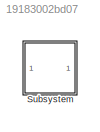
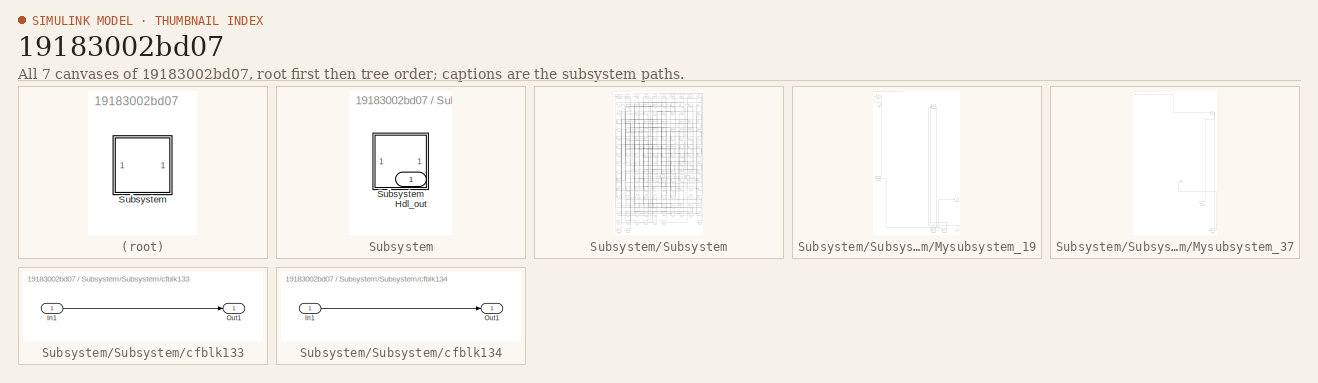
[diagram: thumbnail index - all 7 canvases of the model, root first then tree order]
MODEL slx_19183002bd07
KIND model
CONFIG AbsTol = auto
CONFIG EnableMultiTasking = off
CONFIG FixedStep = auto
CONFIG MaxStep = auto
CONFIG MinStep = auto
CONFIG RelTol = 1e-3
CONFIG SampleTimeConstraint = Unconstrained
CONFIG SolverName = VariableStepAuto
CONFIG StartTime = 0.0
CONFIG StopTime = 10.0
BLOCK [SubSystem] Subsystem
BLOCK [Outport] Subsystem/Hdl_out
  OutDataTypeStr = uint8
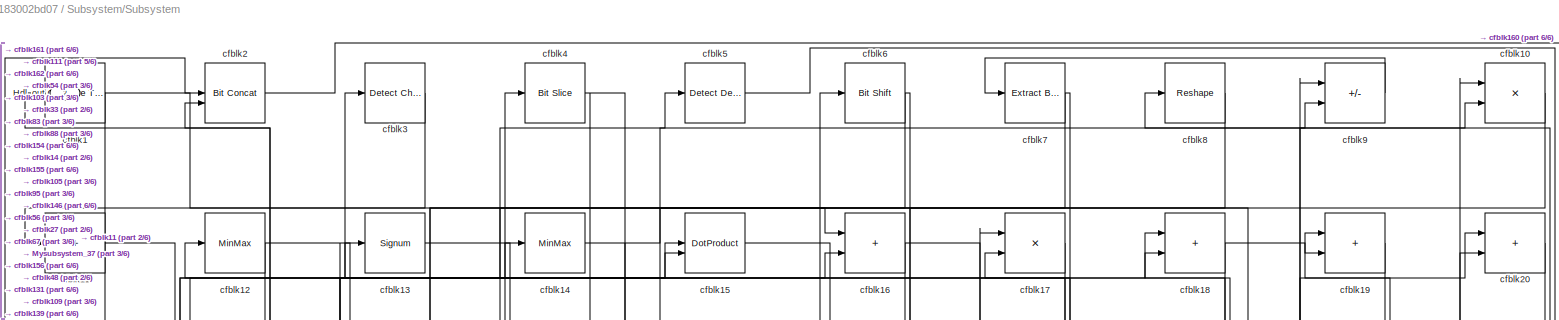
[diagram: Subsystem/Subsystem - part 1/6, full width, top band]
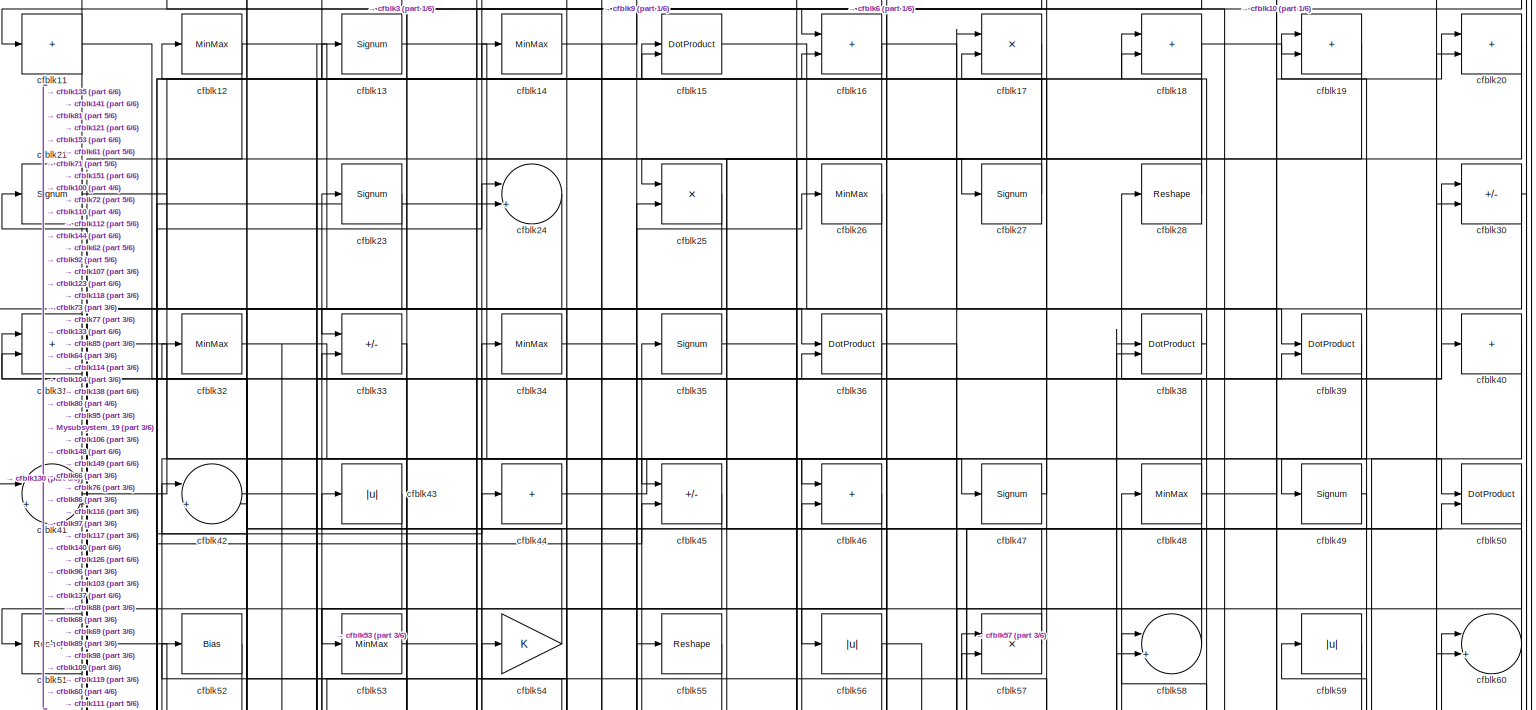
[diagram: Subsystem/Subsystem - part 2/6, full width, top band]
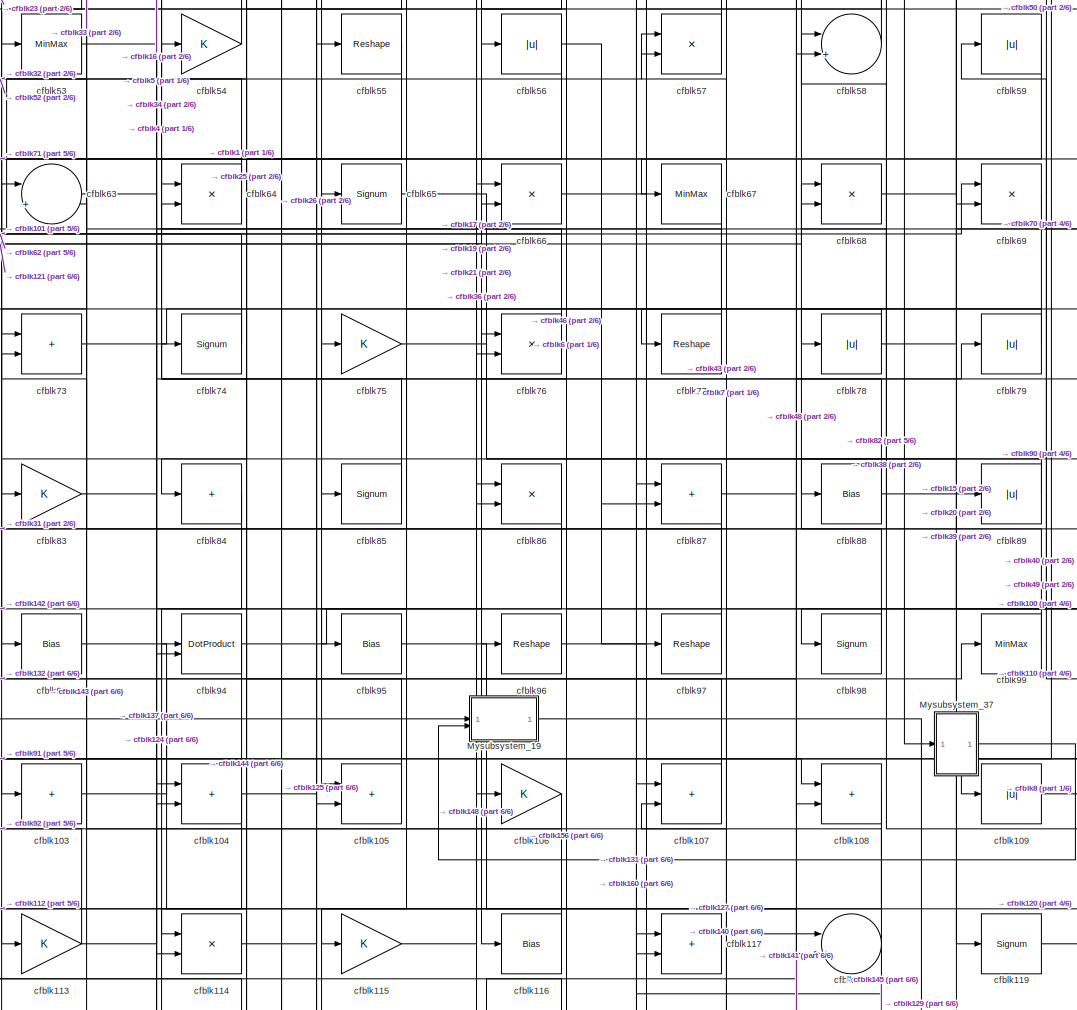
[diagram: Subsystem/Subsystem - part 3/6, central region]
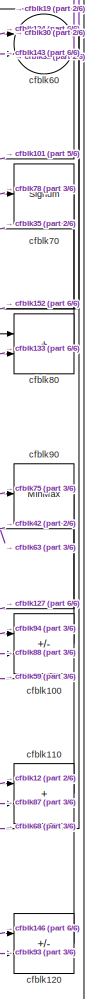
[diagram: Subsystem/Subsystem - part 4/6, middle right region]
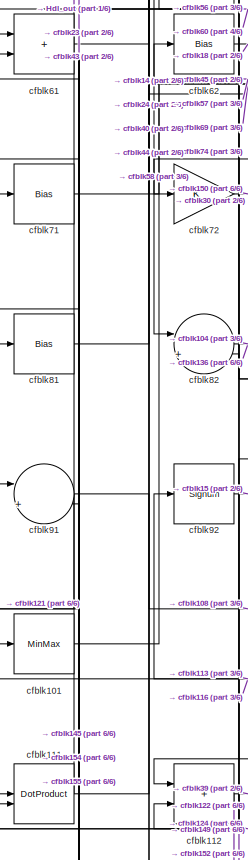
[diagram: Subsystem/Subsystem - part 5/6, middle left region]
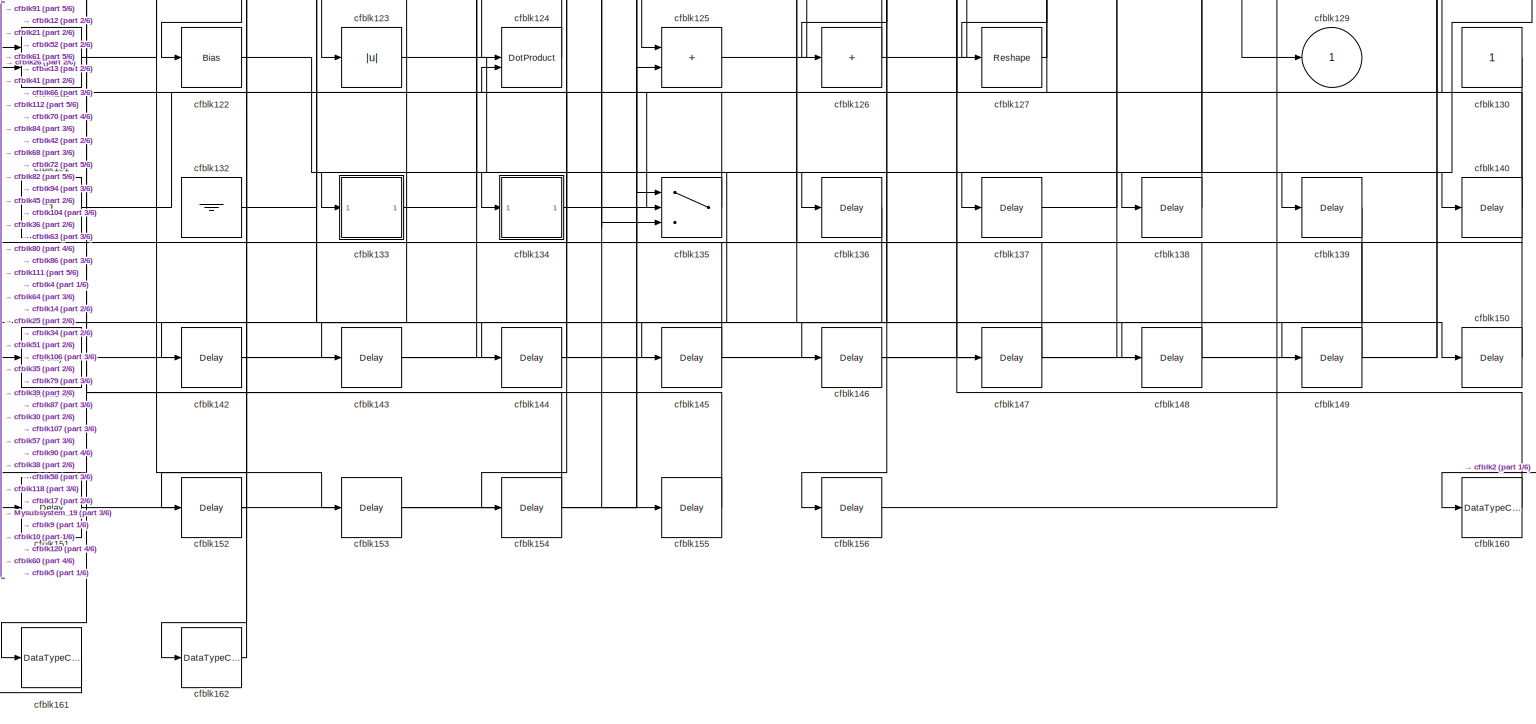
[diagram: Subsystem/Subsystem - part 6/6, full width, bottom band]
BLOCK [SubSystem] Subsystem/Subsystem
BLOCK [Outport] Subsystem/Subsystem/Hdl_out
  OutDataTypeStr = uint8
  Port = 2
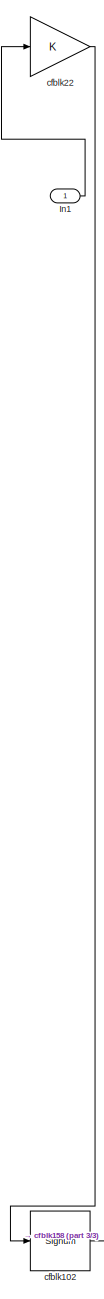
[diagram: Subsystem/Subsystem/Mysubsystem_19 - part 1/3, top left region]
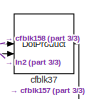
[diagram: Subsystem/Subsystem/Mysubsystem_19 - part 2/3, top right region]
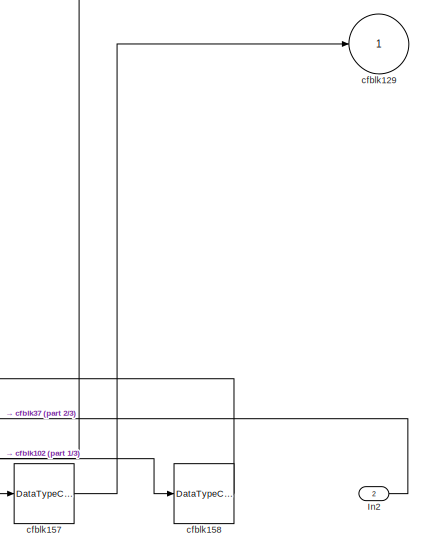
[diagram: Subsystem/Subsystem/Mysubsystem_19 - part 3/3, bottom right region]
BLOCK [SubSystem] Subsystem/Subsystem/Mysubsystem_19
  RTWFcnName = Mysubsystem_19
  RTWFcnNameOpts = User specified
  RTWFileNameOpts = Use function name
  RTWSystemCode = Reusable function
  TreatAsAtomicUnit = on
BLOCK [Inport] Subsystem/Subsystem/Mysubsystem_19/In1
BLOCK [Inport] Subsystem/Subsystem/Mysubsystem_19/In2
  Port = 2
BLOCK [Signum] Subsystem/Subsystem/Mysubsystem_19/cfblk102
BLOCK [Outport] Subsystem/Subsystem/Mysubsystem_19/cfblk129
  VectorParamsAs1DForOutWhenUnconnected = off
BLOCK [DataTypeConversion] Subsystem/Subsystem/Mysubsystem_19/cfblk157
  OutDataTypeStr = uint8
  RndMeth = Floor
  SaturateOnIntegerOverflow = off
BLOCK [DataTypeConversion] Subsystem/Subsystem/Mysubsystem_19/cfblk158
  OutDataTypeStr = uint8
  RndMeth = Floor
  SaturateOnIntegerOverflow = off
BLOCK [Gain] Subsystem/Subsystem/Mysubsystem_19/cfblk22
BLOCK [DotProduct] Subsystem/Subsystem/Mysubsystem_19/cfblk37
  OutDataTypeStr = Inherit: Inherit via internal rule
BLOCK [SubSystem] Subsystem/Subsystem/Mysubsystem_37
  RTWFcnName = Mysubsystem_37
  RTWFcnNameOpts = User specified
  RTWFileNameOpts = Use function name
  RTWSystemCode = Reusable function
  TreatAsAtomicUnit = on
BLOCK [Inport] Subsystem/Subsystem/Mysubsystem_37/In1
BLOCK [Outport] Subsystem/Subsystem/Mysubsystem_37/Out1
BLOCK [Display] Subsystem/Subsystem/Mysubsystem_37/cfblk128
  Decimation = 1
BLOCK [DataTypeConversion] Subsystem/Subsystem/Mysubsystem_37/cfblk159
  OutDataTypeStr = uint8
  RndMeth = Floor
  SaturateOnIntegerOverflow = off
BLOCK [Gain] Subsystem/Subsystem/Mysubsystem_37/cfblk29
BLOCK [Reference] Subsystem/Subsystem/cfblk1  REF=hdlsllib/Logic and Bit
Operations/Compare
To Zero
  SourceBlock = hdlsllib/Logic and Bit\nOperations/Compare\nTo Zero
  SourceType = Compare To Zero
BLOCK [Product] Subsystem/Subsystem/cfblk10
  Inputs = */
  OutDataTypeStr = uint8
  RndMeth = Zero
  SaturateOnIntegerOverflow = on
BLOCK [Sum] Subsystem/Subsystem/cfblk100
  IconShape = rectangular
  Inputs = +-
  OutDataTypeStr = uint8
BLOCK [MinMax] Subsystem/Subsystem/cfblk101
  OutDataTypeStr = uint8
BLOCK [Sum] Subsystem/Subsystem/cfblk103
  IconShape = rectangular
  Inputs = +
  OutDataTypeStr = uint8
BLOCK [Sum] Subsystem/Subsystem/cfblk104
  IconShape = rectangular
  OutDataTypeStr = uint8
BLOCK [Sum] Subsystem/Subsystem/cfblk105
  IconShape = rectangular
  OutDataTypeStr = uint8
BLOCK [Gain] Subsystem/Subsystem/cfblk106
  OutDataTypeStr = uint8
BLOCK [Sum] Subsystem/Subsystem/cfblk107
  IconShape = rectangular
  OutDataTypeStr = uint8
BLOCK [Sum] Subsystem/Subsystem/cfblk108
  IconShape = rectangular
  OutDataTypeStr = uint8
BLOCK [Abs] Subsystem/Subsystem/cfblk109
  OutDataTypeStr = uint8
  SaturateOnIntegerOverflow = off
BLOCK [Sum] Subsystem/Subsystem/cfblk11
  IconShape = rectangular
  Inputs = +
  OutDataTypeStr = uint8
BLOCK [Sum] Subsystem/Subsystem/cfblk110
  IconShape = rectangular
  OutDataTypeStr = uint8
BLOCK [DotProduct] Subsystem/Subsystem/cfblk111
  OutDataTypeStr = uint8
BLOCK [Sum] Subsystem/Subsystem/cfblk112
  IconShape = rectangular
  OutDataTypeStr = uint8
BLOCK [Gain] Subsystem/Subsystem/cfblk113
  OutDataTypeStr = uint8
BLOCK [Product] Subsystem/Subsystem/cfblk114
  Inputs = */
  OutDataTypeStr = uint8
  RndMeth = Zero
  SaturateOnIntegerOverflow = on
BLOCK [Gain] Subsystem/Subsystem/cfblk115
  OutDataTypeStr = uint8
BLOCK [Bias] Subsystem/Subsystem/cfblk116
  Bias = 0.0
  SaturateOnIntegerOverflow = off
BLOCK [Sum] Subsystem/Subsystem/cfblk117
  IconShape = rectangular
  OutDataTypeStr = uint8
BLOCK [Sum] Subsystem/Subsystem/cfblk118
  Inputs = |++
  OutDataTypeStr = uint8
BLOCK [Signum] Subsystem/Subsystem/cfblk119
BLOCK [MinMax] Subsystem/Subsystem/cfblk12
  OutDataTypeStr = uint8
BLOCK [Sum] Subsystem/Subsystem/cfblk120
  IconShape = rectangular
  Inputs = +-
  OutDataTypeStr = uint8
BLOCK [Product] Subsystem/Subsystem/cfblk121
  Inputs = */
  OutDataTypeStr = uint8
  RndMeth = Zero
  SaturateOnIntegerOverflow = on
BLOCK [Bias] Subsystem/Subsystem/cfblk122
  Bias = 0.0
  SaturateOnIntegerOverflow = off
BLOCK [Abs] Subsystem/Subsystem/cfblk123
  OutDataTypeStr = uint8
  SaturateOnIntegerOverflow = off
BLOCK [DotProduct] Subsystem/Subsystem/cfblk124
  OutDataTypeStr = uint8
BLOCK [Sum] Subsystem/Subsystem/cfblk125
  IconShape = rectangular
  OutDataTypeStr = uint8
BLOCK [Sum] Subsystem/Subsystem/cfblk126
  IconShape = rectangular
  Inputs = +
  OutDataTypeStr = uint8
BLOCK [Reshape] Subsystem/Subsystem/cfblk127
BLOCK [Outport] Subsystem/Subsystem/cfblk129
  OutDataTypeStr = uint8
  VectorParamsAs1DForOutWhenUnconnected = off
BLOCK [Signum] Subsystem/Subsystem/cfblk13
BLOCK [Constant] Subsystem/Subsystem/cfblk130
  OutDataTypeStr = uint8
  SampleTime = -1
BLOCK [Constant] Subsystem/Subsystem/cfblk131
  OutDataTypeStr = uint8
  SampleTime = -1
BLOCK [Ground] Subsystem/Subsystem/cfblk132
BLOCK [SubSystem] Subsystem/Subsystem/cfblk133
  LibrarySourceBlock = hdlsllib/Ports &\nSubsystems/Subsystem
BLOCK [Inport] Subsystem/Subsystem/cfblk133/In1
BLOCK [Outport] Subsystem/Subsystem/cfblk133/Out1
BLOCK [SubSystem] Subsystem/Subsystem/cfblk134
  LibrarySourceBlock = hdlsllib/Ports &\nSubsystems/Subsystem
BLOCK [Inport] Subsystem/Subsystem/cfblk134/In1
BLOCK [Outport] Subsystem/Subsystem/cfblk134/Out1
BLOCK [Switch] Subsystem/Subsystem/cfblk135
  InputSameDT = off
  OutDataTypeStr = uint8
  SaturateOnIntegerOverflow = off
BLOCK [Delay] Subsystem/Subsystem/cfblk136
  InputPortMap = u0
  SampleTime = 1
BLOCK [Delay] Subsystem/Subsystem/cfblk137
  InputPortMap = u0
  SampleTime = 1
BLOCK [Delay] Subsystem/Subsystem/cfblk138
  InputPortMap = u0
  SampleTime = 1
BLOCK [Delay] Subsystem/Subsystem/cfblk139
  InputPortMap = u0
  SampleTime = 1
BLOCK [MinMax] Subsystem/Subsystem/cfblk14
  OutDataTypeStr = uint8
BLOCK [Delay] Subsystem/Subsystem/cfblk140
  InputPortMap = u0
  SampleTime = 1
BLOCK [Delay] Subsystem/Subsystem/cfblk141
  InputPortMap = u0
  SampleTime = 1
BLOCK [Delay] Subsystem/Subsystem/cfblk142
  InputPortMap = u0
  SampleTime = 1
BLOCK [Delay] Subsystem/Subsystem/cfblk143
  InputPortMap = u0
  SampleTime = 1
BLOCK [Delay] Subsystem/Subsystem/cfblk144
  InputPortMap = u0
  SampleTime = 1
BLOCK [Delay] Subsystem/Subsystem/cfblk145
  InputPortMap = u0
  SampleTime = 1
BLOCK [Delay] Subsystem/Subsystem/cfblk146
  InputPortMap = u0
  SampleTime = 1
BLOCK [Delay] Subsystem/Subsystem/cfblk147
  InputPortMap = u0
  SampleTime = 1
BLOCK [Delay] Subsystem/Subsystem/cfblk148
  InputPortMap = u0
  SampleTime = 1
BLOCK [Delay] Subsystem/Subsystem/cfblk149
  InputPortMap = u0
  SampleTime = 1
BLOCK [DotProduct] Subsystem/Subsystem/cfblk15
  OutDataTypeStr = uint8
BLOCK [Delay] Subsystem/Subsystem/cfblk150
  InputPortMap = u0
  SampleTime = 1
BLOCK [Delay] Subsystem/Subsystem/cfblk151
  InputPortMap = u0
  SampleTime = 1
BLOCK [Delay] Subsystem/Subsystem/cfblk152
  InputPortMap = u0
  SampleTime = 1
BLOCK [Delay] Subsystem/Subsystem/cfblk153
  InputPortMap = u0
  SampleTime = 1
BLOCK [Delay] Subsystem/Subsystem/cfblk154
  InputPortMap = u0
  SampleTime = 1
BLOCK [Delay] Subsystem/Subsystem/cfblk155
  InputPortMap = u0
  SampleTime = 1
BLOCK [Delay] Subsystem/Subsystem/cfblk156
  InputPortMap = u0
  SampleTime = 1
BLOCK [Sum] Subsystem/Subsystem/cfblk16
  IconShape = rectangular
  OutDataTypeStr = uint8
BLOCK [DataTypeConversion] Subsystem/Subsystem/cfblk160
  OutDataTypeStr = uint8
  RndMeth = Floor
  SaturateOnIntegerOverflow = off
BLOCK [DataTypeConversion] Subsystem/Subsystem/cfblk161
  OutDataTypeStr = uint8
  RndMeth = Floor
  SaturateOnIntegerOverflow = off
BLOCK [DataTypeConversion] Subsystem/Subsystem/cfblk162
  OutDataTypeStr = uint8
  RndMeth = Floor
  SaturateOnIntegerOverflow = off
BLOCK [Product] Subsystem/Subsystem/cfblk17
  Inputs = */
  OutDataTypeStr = uint8
  RndMeth = Zero
  SaturateOnIntegerOverflow = on
BLOCK [Sum] Subsystem/Subsystem/cfblk18
  IconShape = rectangular
  OutDataTypeStr = uint8
BLOCK [Sum] Subsystem/Subsystem/cfblk19
  IconShape = rectangular
  OutDataTypeStr = uint8
BLOCK [Reference] Subsystem/Subsystem/cfblk2  REF=hdlsllib/Logic and Bit
Operations/Bit Concat
  SourceBlock = hdlsllib/Logic and Bit\nOperations/Bit Concat
  SourceType = Bit Concat
BLOCK [Sum] Subsystem/Subsystem/cfblk20
  IconShape = rectangular
  OutDataTypeStr = uint8
BLOCK [Signum] Subsystem/Subsystem/cfblk21
BLOCK [Signum] Subsystem/Subsystem/cfblk23
BLOCK [Sum] Subsystem/Subsystem/cfblk24
  Inputs = |++
  OutDataTypeStr = uint8
BLOCK [Product] Subsystem/Subsystem/cfblk25
  Inputs = */
  OutDataTypeStr = uint8
  RndMeth = Zero
  SaturateOnIntegerOverflow = on
BLOCK [MinMax] Subsystem/Subsystem/cfblk26
  OutDataTypeStr = uint8
BLOCK [Signum] Subsystem/Subsystem/cfblk27
BLOCK [Reshape] Subsystem/Subsystem/cfblk28
BLOCK [Reference] Subsystem/Subsystem/cfblk3  REF=simulink/Logic and Bit
Operations/Detect
Change
  LibrarySourceBlock = hdlsllib/Logic and Bit\nOperations/Detect\nChange
  SourceBlock = simulink/Logic and Bit\nOperations/Detect\nChange
  SourceType = Detect Change
BLOCK [Sum] Subsystem/Subsystem/cfblk30
  IconShape = rectangular
  Inputs = +-
  OutDataTypeStr = uint8
BLOCK [Sum] Subsystem/Subsystem/cfblk31
  IconShape = rectangular
  OutDataTypeStr = uint8
BLOCK [MinMax] Subsystem/Subsystem/cfblk32
  OutDataTypeStr = uint8
BLOCK [Sum] Subsystem/Subsystem/cfblk33
  IconShape = rectangular
  Inputs = +-
  OutDataTypeStr = uint8
BLOCK [MinMax] Subsystem/Subsystem/cfblk34
  OutDataTypeStr = uint8
BLOCK [Signum] Subsystem/Subsystem/cfblk35
BLOCK [DotProduct] Subsystem/Subsystem/cfblk36
  OutDataTypeStr = uint8
BLOCK [DotProduct] Subsystem/Subsystem/cfblk38
  OutDataTypeStr = uint8
BLOCK [DotProduct] Subsystem/Subsystem/cfblk39
  OutDataTypeStr = uint8
BLOCK [Reference] Subsystem/Subsystem/cfblk4  REF=hdlsllib/Logic and Bit
Operations/Bit Slice
  SourceBlock = hdlsllib/Logic and Bit\nOperations/Bit Slice
  SourceType = Bit Slice
BLOCK [Sum] Subsystem/Subsystem/cfblk40
  IconShape = rectangular
  Inputs = +
  OutDataTypeStr = uint8
BLOCK [Sum] Subsystem/Subsystem/cfblk41
  Inputs = |++
  OutDataTypeStr = uint8
BLOCK [Sum] Subsystem/Subsystem/cfblk42
  Inputs = |++
  OutDataTypeStr = uint8
BLOCK [Abs] Subsystem/Subsystem/cfblk43
  OutDataTypeStr = uint8
  SaturateOnIntegerOverflow = off
BLOCK [Sum] Subsystem/Subsystem/cfblk44
  IconShape = rectangular
  Inputs = +
  OutDataTypeStr = uint8
BLOCK [Sum] Subsystem/Subsystem/cfblk45
  IconShape = rectangular
  Inputs = +-
  OutDataTypeStr = uint8
BLOCK [Sum] Subsystem/Subsystem/cfblk46
  IconShape = rectangular
  OutDataTypeStr = uint8
BLOCK [Signum] Subsystem/Subsystem/cfblk47
BLOCK [MinMax] Subsystem/Subsystem/cfblk48
  OutDataTypeStr = uint8
BLOCK [Signum] Subsystem/Subsystem/cfblk49
BLOCK [Reference] Subsystem/Subsystem/cfblk5  REF=simulink/Logic and Bit
Operations/Detect
Decrease
  LibrarySourceBlock = hdlsllib/Logic and Bit\nOperations/Detect\nDecrease
  SourceBlock = simulink/Logic and Bit\nOperations/Detect\nDecrease
  SourceType = Detect Decrease
BLOCK [DotProduct] Subsystem/Subsystem/cfblk50
  OutDataTypeStr = uint8
BLOCK [Reshape] Subsystem/Subsystem/cfblk51
BLOCK [Bias] Subsystem/Subsystem/cfblk52
  Bias = 0.0
  SaturateOnIntegerOverflow = off
BLOCK [MinMax] Subsystem/Subsystem/cfblk53
  OutDataTypeStr = uint8
BLOCK [Gain] Subsystem/Subsystem/cfblk54
  OutDataTypeStr = uint8
BLOCK [Reshape] Subsystem/Subsystem/cfblk55
BLOCK [Abs] Subsystem/Subsystem/cfblk56
  OutDataTypeStr = uint8
  SaturateOnIntegerOverflow = off
BLOCK [Product] Subsystem/Subsystem/cfblk57
  Inputs = */
  OutDataTypeStr = uint8
  RndMeth = Zero
  SaturateOnIntegerOverflow = on
BLOCK [Sum] Subsystem/Subsystem/cfblk58
  Inputs = |++
  OutDataTypeStr = uint8
BLOCK [Abs] Subsystem/Subsystem/cfblk59
  OutDataTypeStr = uint8
  SaturateOnIntegerOverflow = off
BLOCK [Reference] Subsystem/Subsystem/cfblk6  REF=hdlsllib/Logic and Bit
Operations/Bit Shift
  SourceBlock = hdlsllib/Logic and Bit\nOperations/Bit Shift
  SourceType = Bit Shift
BLOCK [Sum] Subsystem/Subsystem/cfblk60
  Inputs = |++
  OutDataTypeStr = uint8
BLOCK [Sum] Subsystem/Subsystem/cfblk61
  IconShape = rectangular
  OutDataTypeStr = uint8
BLOCK [Bias] Subsystem/Subsystem/cfblk62
  Bias = 0.0
  SaturateOnIntegerOverflow = off
BLOCK [Sum] Subsystem/Subsystem/cfblk63
  Inputs = |++
  OutDataTypeStr = uint8
BLOCK [Product] Subsystem/Subsystem/cfblk64
  Inputs = */
  OutDataTypeStr = uint8
  RndMeth = Zero
  SaturateOnIntegerOverflow = on
BLOCK [Signum] Subsystem/Subsystem/cfblk65
BLOCK [Product] Subsystem/Subsystem/cfblk66
  Inputs = */
  OutDataTypeStr = uint8
  RndMeth = Zero
  SaturateOnIntegerOverflow = on
BLOCK [MinMax] Subsystem/Subsystem/cfblk67
  OutDataTypeStr = uint8
BLOCK [Product] Subsystem/Subsystem/cfblk68
  Inputs = */
  OutDataTypeStr = uint8
  RndMeth = Zero
  SaturateOnIntegerOverflow = on
BLOCK [Product] Subsystem/Subsystem/cfblk69
  Inputs = */
  OutDataTypeStr = uint8
  RndMeth = Zero
  SaturateOnIntegerOverflow = on
BLOCK [Reference] Subsystem/Subsystem/cfblk7  REF=simulink/Logic and Bit
Operations/Extract Bits
  LibrarySourceBlock = hdlsllib/Logic and Bit\nOperations/Extract Bits
  SourceBlock = simulink/Logic and Bit\nOperations/Extract Bits
  SourceType = Extract Bits
BLOCK [Signum] Subsystem/Subsystem/cfblk70
BLOCK [Bias] Subsystem/Subsystem/cfblk71
  Bias = 0.0
  SaturateOnIntegerOverflow = off
BLOCK [Gain] Subsystem/Subsystem/cfblk72
  OutDataTypeStr = uint8
BLOCK [Sum] Subsystem/Subsystem/cfblk73
  IconShape = rectangular
  OutDataTypeStr = uint8
BLOCK [Signum] Subsystem/Subsystem/cfblk74
BLOCK [Gain] Subsystem/Subsystem/cfblk75
  OutDataTypeStr = uint8
BLOCK [Product] Subsystem/Subsystem/cfblk76
  Inputs = */
  OutDataTypeStr = uint8
  RndMeth = Zero
  SaturateOnIntegerOverflow = on
BLOCK [Reshape] Subsystem/Subsystem/cfblk77
BLOCK [Abs] Subsystem/Subsystem/cfblk78
  OutDataTypeStr = uint8
  SaturateOnIntegerOverflow = off
BLOCK [Abs] Subsystem/Subsystem/cfblk79
  OutDataTypeStr = uint8
  SaturateOnIntegerOverflow = off
BLOCK [Reshape] Subsystem/Subsystem/cfblk8
BLOCK [Sum] Subsystem/Subsystem/cfblk80
  IconShape = rectangular
  OutDataTypeStr = uint8
BLOCK [Bias] Subsystem/Subsystem/cfblk81
  Bias = 0.0
  SaturateOnIntegerOverflow = off
BLOCK [Sum] Subsystem/Subsystem/cfblk82
  Inputs = |++
  OutDataTypeStr = uint8
BLOCK [Gain] Subsystem/Subsystem/cfblk83
  OutDataTypeStr = uint8
BLOCK [Sum] Subsystem/Subsystem/cfblk84
  IconShape = rectangular
  Inputs = +
  OutDataTypeStr = uint8
BLOCK [Signum] Subsystem/Subsystem/cfblk85
BLOCK [Product] Subsystem/Subsystem/cfblk86
  Inputs = */
  OutDataTypeStr = uint8
  RndMeth = Zero
  SaturateOnIntegerOverflow = on
BLOCK [Sum] Subsystem/Subsystem/cfblk87
  IconShape = rectangular
  OutDataTypeStr = uint8
BLOCK [Bias] Subsystem/Subsystem/cfblk88
  Bias = 0.0
  SaturateOnIntegerOverflow = off
BLOCK [Abs] Subsystem/Subsystem/cfblk89
  OutDataTypeStr = uint8
  SaturateOnIntegerOverflow = off
BLOCK [Sum] Subsystem/Subsystem/cfblk9
  IconShape = rectangular
  Inputs = +-
  OutDataTypeStr = uint8
BLOCK [MinMax] Subsystem/Subsystem/cfblk90
  OutDataTypeStr = uint8
BLOCK [Sum] Subsystem/Subsystem/cfblk91
  Inputs = |++
  OutDataTypeStr = uint8
BLOCK [Signum] Subsystem/Subsystem/cfblk92
BLOCK [Bias] Subsystem/Subsystem/cfblk93
  Bias = 0.0
  SaturateOnIntegerOverflow = off
BLOCK [DotProduct] Subsystem/Subsystem/cfblk94
  OutDataTypeStr = uint8
BLOCK [Bias] Subsystem/Subsystem/cfblk95
  Bias = 0.0
  SaturateOnIntegerOverflow = off
BLOCK [Reshape] Subsystem/Subsystem/cfblk96
BLOCK [Reshape] Subsystem/Subsystem/cfblk97
BLOCK [Signum] Subsystem/Subsystem/cfblk98
BLOCK [MinMax] Subsystem/Subsystem/cfblk99
  OutDataTypeStr = uint8
LINE Subsystem/Subsystem/Mysubsystem_19/In1:1 -> Subsystem/Subsystem/Mysubsystem_19/cfblk22:1
LINE Subsystem/Subsystem/Mysubsystem_19/In2:1 -> Subsystem/Subsystem/Mysubsystem_19/cfblk37:2
LINE Subsystem/Subsystem/Mysubsystem_19/cfblk102:1 -> Subsystem/Subsystem/Mysubsystem_19/cfblk158:1
LINE Subsystem/Subsystem/Mysubsystem_19/cfblk157:1 -> Subsystem/Subsystem/Mysubsystem_19/cfblk129:1
LINE Subsystem/Subsystem/Mysubsystem_19/cfblk158:1 -> Subsystem/Subsystem/Mysubsystem_19/cfblk37:1
LINE Subsystem/Subsystem/Mysubsystem_19/cfblk22:1 -> Subsystem/Subsystem/Mysubsystem_19/cfblk102:1
LINE Subsystem/Subsystem/Mysubsystem_19/cfblk37:1 -> Subsystem/Subsystem/Mysubsystem_19/cfblk157:1
LINE Subsystem/Subsystem/Mysubsystem_19:1 -> Subsystem/Subsystem/cfblk129:1
LINE Subsystem/Subsystem/Mysubsystem_37/In1:1 -> Subsystem/Subsystem/Mysubsystem_37/cfblk29:1
LINE Subsystem/Subsystem/Mysubsystem_37/cfblk159:1 -> Subsystem/Subsystem/Mysubsystem_37/Out1:1
NET Subsystem/Subsystem/Mysubsystem_37/cfblk29:1 -> Subsystem/Subsystem/Mysubsystem_37/cfblk128:1, Subsystem/Subsystem/Mysubsystem_37/cfblk159:1
LINE Subsystem/Subsystem/Mysubsystem_37:1 -> Subsystem/Subsystem/Mysubsystem_19:2
NET Subsystem/Subsystem/cfblk100:1 -> Subsystem/Subsystem/cfblk42:1, Subsystem/Subsystem/cfblk63:2
LINE Subsystem/Subsystem/cfblk101:1 -> Subsystem/Subsystem/cfblk69:1
LINE Subsystem/Subsystem/cfblk103:1 -> Subsystem/Subsystem/cfblk38:2
NET Subsystem/Subsystem/cfblk104:1 -> Subsystem/Subsystem/cfblk113:1, Subsystem/Subsystem/cfblk26:1
LINE Subsystem/Subsystem/cfblk105:1 -> Subsystem/Subsystem/cfblk74:1
LINE Subsystem/Subsystem/cfblk106:1 -> Subsystem/Subsystem/cfblk125:1
LINE Subsystem/Subsystem/cfblk107:1 -> Subsystem/Subsystem/cfblk23:1
LINE Subsystem/Subsystem/cfblk108:1 -> Subsystem/Subsystem/cfblk112:1
LINE Subsystem/Subsystem/cfblk109:1 -> Subsystem/Subsystem/cfblk8:1
LINE Subsystem/Subsystem/cfblk10:1 -> Subsystem/Subsystem/cfblk146:1
LINE Subsystem/Subsystem/cfblk110:1 -> Subsystem/Subsystem/cfblk59:1
NET Subsystem/Subsystem/cfblk111:1 -> Subsystem/Subsystem/Hdl_out:1, Subsystem/Subsystem/cfblk24:1, Subsystem/Subsystem/cfblk40:1
NET Subsystem/Subsystem/cfblk112:1 -> Subsystem/Subsystem/cfblk122:1, Subsystem/Subsystem/cfblk39:2
NET Subsystem/Subsystem/cfblk113:1 -> Subsystem/Subsystem/cfblk65:1, Subsystem/Subsystem/cfblk91:1
LINE Subsystem/Subsystem/cfblk114:1 -> Subsystem/Subsystem/cfblk55:1
LINE Subsystem/Subsystem/cfblk115:1 -> Subsystem/Subsystem/cfblk99:1
LINE Subsystem/Subsystem/cfblk116:1 -> Subsystem/Subsystem/cfblk92:1
LINE Subsystem/Subsystem/cfblk117:1 -> Subsystem/Subsystem/cfblk118:1
NET Subsystem/Subsystem/cfblk118:1 -> Subsystem/Subsystem/cfblk145:1, Subsystem/Subsystem/cfblk33:2, Subsystem/Subsystem/cfblk76:1
LINE Subsystem/Subsystem/cfblk119:1 -> Subsystem/Subsystem/cfblk20:2
LINE Subsystem/Subsystem/cfblk11:1 -> Subsystem/Subsystem/cfblk30:1
LINE Subsystem/Subsystem/cfblk120:1 -> Subsystem/Subsystem/cfblk68:1
NET Subsystem/Subsystem/cfblk121:1 -> Subsystem/Subsystem/cfblk13:1, Subsystem/Subsystem/cfblk66:2
LINE Subsystem/Subsystem/cfblk122:1 -> Subsystem/Subsystem/cfblk134:1
LINE Subsystem/Subsystem/cfblk123:1 -> Subsystem/Subsystem/cfblk147:1
LINE Subsystem/Subsystem/cfblk124:1 -> Subsystem/Subsystem/cfblk111:1
LINE Subsystem/Subsystem/cfblk125:1 -> Subsystem/Subsystem/cfblk79:1
NET Subsystem/Subsystem/cfblk126:1 -> Subsystem/Subsystem/cfblk30:2, Subsystem/Subsystem/cfblk41:2
LINE Subsystem/Subsystem/cfblk127:1 -> Subsystem/Subsystem/cfblk57:2
NET Subsystem/Subsystem/cfblk12:1 -> Subsystem/Subsystem/cfblk110:1, Subsystem/Subsystem/cfblk141:1, Subsystem/Subsystem/cfblk36:1
LINE Subsystem/Subsystem/cfblk130:1 -> Subsystem/Subsystem/cfblk41:1
NET Subsystem/Subsystem/cfblk131:1 -> Subsystem/Subsystem/cfblk10:1, Subsystem/Subsystem/cfblk87:1
NET Subsystem/Subsystem/cfblk132:1 -> Subsystem/Subsystem/cfblk68:2, Subsystem/Subsystem/cfblk94:1
LINE Subsystem/Subsystem/cfblk133/In1:1 -> Subsystem/Subsystem/cfblk133/Out1:1
NET Subsystem/Subsystem/cfblk133:1 -> Subsystem/Subsystem/cfblk36:2, Subsystem/Subsystem/cfblk80:2
LINE Subsystem/Subsystem/cfblk134/In1:1 -> Subsystem/Subsystem/cfblk134/Out1:1
LINE Subsystem/Subsystem/cfblk134:1 -> Subsystem/Subsystem/cfblk60:1
NET Subsystem/Subsystem/cfblk135:1 -> Subsystem/Subsystem/cfblk133:1, Subsystem/Subsystem/cfblk21:1
LINE Subsystem/Subsystem/cfblk136:1 -> Subsystem/Subsystem/cfblk162:1
LINE Subsystem/Subsystem/cfblk137:1 -> Subsystem/Subsystem/cfblk38:1
LINE Subsystem/Subsystem/cfblk138:1 -> Subsystem/Subsystem/cfblk17:1
LINE Subsystem/Subsystem/cfblk139:1 -> Subsystem/Subsystem/cfblk161:1
NET Subsystem/Subsystem/cfblk13:1 -> Subsystem/Subsystem/cfblk16:1, Subsystem/Subsystem/cfblk16:2, Subsystem/Subsystem/cfblk47:1
LINE Subsystem/Subsystem/cfblk140:1 -> Subsystem/Subsystem/cfblk107:2
LINE Subsystem/Subsystem/cfblk141:1 -> Subsystem/Subsystem/cfblk58:2
LINE Subsystem/Subsystem/cfblk142:1 -> Subsystem/Subsystem/cfblk104:1
LINE Subsystem/Subsystem/cfblk143:1 -> Subsystem/Subsystem/cfblk60:2
LINE Subsystem/Subsystem/cfblk144:1 -> Subsystem/Subsystem/cfblk64:2
LINE Subsystem/Subsystem/cfblk145:1 -> Subsystem/Subsystem/cfblk61:2
LINE Subsystem/Subsystem/cfblk146:1 -> Subsystem/Subsystem/cfblk120:1
LINE Subsystem/Subsystem/cfblk147:1 -> Subsystem/Subsystem/cfblk124:2
LINE Subsystem/Subsystem/cfblk148:1 -> Subsystem/Subsystem/cfblk86:1
LINE Subsystem/Subsystem/cfblk149:1 -> Subsystem/Subsystem/cfblk112:2
NET Subsystem/Subsystem/cfblk14:1 -> Subsystem/Subsystem/cfblk135:3, Subsystem/Subsystem/cfblk9:2
LINE Subsystem/Subsystem/cfblk150:1 -> Subsystem/Subsystem/cfblk135:2
LINE Subsystem/Subsystem/cfblk151:1 -> Subsystem/Subsystem/cfblk125:2
LINE Subsystem/Subsystem/cfblk152:1 -> Subsystem/Subsystem/cfblk82:2
LINE Subsystem/Subsystem/cfblk153:1 -> Subsystem/Subsystem/cfblk25:2
LINE Subsystem/Subsystem/cfblk154:1 -> Subsystem/Subsystem/cfblk91:2
LINE Subsystem/Subsystem/cfblk155:1 -> Subsystem/Subsystem/cfblk111:2
LINE Subsystem/Subsystem/cfblk156:1 -> Subsystem/Subsystem/cfblk9:1
LINE Subsystem/Subsystem/cfblk15:1 -> Subsystem/Subsystem/cfblk89:1
LINE Subsystem/Subsystem/cfblk160:1 -> Subsystem/Subsystem/cfblk107:1
LINE Subsystem/Subsystem/cfblk161:1 -> Subsystem/Subsystem/cfblk2:1
LINE Subsystem/Subsystem/cfblk162:1 -> Subsystem/Subsystem/cfblk2:2
NET Subsystem/Subsystem/cfblk16:1 -> Subsystem/Subsystem/cfblk114:2, Subsystem/Subsystem/cfblk39:1
NET Subsystem/Subsystem/cfblk17:1 -> Subsystem/Subsystem/cfblk86:2, Subsystem/Subsystem/cfblk95:1
NET Subsystem/Subsystem/cfblk18:1 -> Subsystem/Subsystem/cfblk19:2, Subsystem/Subsystem/cfblk25:1
LINE Subsystem/Subsystem/cfblk19:1 -> Subsystem/Subsystem/cfblk76:2
LINE Subsystem/Subsystem/cfblk1:1 -> Subsystem/Subsystem/Mysubsystem_37:1
NET Subsystem/Subsystem/cfblk20:1 -> Subsystem/Subsystem/cfblk45:1, Subsystem/Subsystem/cfblk49:1
NET Subsystem/Subsystem/cfblk21:1 -> Subsystem/Subsystem/cfblk106:1, Subsystem/Subsystem/cfblk27:1
LINE Subsystem/Subsystem/cfblk23:1 -> Subsystem/Subsystem/cfblk81:1
LINE Subsystem/Subsystem/cfblk24:1 -> Subsystem/Subsystem/cfblk51:1
LINE Subsystem/Subsystem/cfblk25:1 -> Subsystem/Subsystem/cfblk64:1
LINE Subsystem/Subsystem/cfblk26:1 -> Subsystem/Subsystem/cfblk121:2
LINE Subsystem/Subsystem/cfblk27:1 -> Subsystem/Subsystem/cfblk3:1
LINE Subsystem/Subsystem/cfblk28:1 -> Subsystem/Subsystem/cfblk12:1
LINE Subsystem/Subsystem/cfblk2:1 -> Subsystem/Subsystem/cfblk160:1
NET Subsystem/Subsystem/cfblk30:1 -> Subsystem/Subsystem/cfblk72:1, Subsystem/Subsystem/cfblk80:1
LINE Subsystem/Subsystem/cfblk31:1 -> Subsystem/Subsystem/cfblk46:1
NET Subsystem/Subsystem/cfblk32:1 -> Subsystem/Subsystem/Mysubsystem_19:1, Subsystem/Subsystem/cfblk117:1, Subsystem/Subsystem/cfblk66:1
LINE Subsystem/Subsystem/cfblk33:1 -> Subsystem/Subsystem/cfblk53:1
LINE Subsystem/Subsystem/cfblk34:1 -> Subsystem/Subsystem/cfblk138:1
NET Subsystem/Subsystem/cfblk35:1 -> Subsystem/Subsystem/cfblk148:1, Subsystem/Subsystem/cfblk149:1
NET Subsystem/Subsystem/cfblk36:1 -> Subsystem/Subsystem/cfblk116:1, Subsystem/Subsystem/cfblk140:1
NET Subsystem/Subsystem/cfblk38:1 -> Subsystem/Subsystem/cfblk18:2, Subsystem/Subsystem/cfblk88:1
NET Subsystem/Subsystem/cfblk39:1 -> Subsystem/Subsystem/cfblk126:1, Subsystem/Subsystem/cfblk42:2, Subsystem/Subsystem/cfblk69:2
LINE Subsystem/Subsystem/cfblk3:1 -> Subsystem/Subsystem/cfblk11:1
LINE Subsystem/Subsystem/cfblk40:1 -> Subsystem/Subsystem/cfblk109:1
NET Subsystem/Subsystem/cfblk41:1 -> Subsystem/Subsystem/cfblk153:1, Subsystem/Subsystem/cfblk15:1
LINE Subsystem/Subsystem/cfblk42:1 -> Subsystem/Subsystem/cfblk144:1
LINE Subsystem/Subsystem/cfblk43:1 -> Subsystem/Subsystem/cfblk61:1
LINE Subsystem/Subsystem/cfblk44:1 -> Subsystem/Subsystem/cfblk50:1
LINE Subsystem/Subsystem/cfblk45:1 -> Subsystem/Subsystem/cfblk123:1
LINE Subsystem/Subsystem/cfblk46:1 -> Subsystem/Subsystem/cfblk73:1
LINE Subsystem/Subsystem/cfblk47:1 -> Subsystem/Subsystem/cfblk17:2
NET Subsystem/Subsystem/cfblk48:1 -> Subsystem/Subsystem/cfblk10:2, Subsystem/Subsystem/cfblk117:2, Subsystem/Subsystem/cfblk28:1
LINE Subsystem/Subsystem/cfblk49:1 -> Subsystem/Subsystem/cfblk98:1
NET Subsystem/Subsystem/cfblk4:1 -> Subsystem/Subsystem/cfblk154:1, Subsystem/Subsystem/cfblk155:1
LINE Subsystem/Subsystem/cfblk50:1 -> Subsystem/Subsystem/cfblk114:1
LINE Subsystem/Subsystem/cfblk51:1 -> Subsystem/Subsystem/cfblk135:1
LINE Subsystem/Subsystem/cfblk52:1 -> Subsystem/Subsystem/cfblk151:1
LINE Subsystem/Subsystem/cfblk53:1 -> Subsystem/Subsystem/cfblk94:2
LINE Subsystem/Subsystem/cfblk54:1 -> Subsystem/Subsystem/cfblk1:1
LINE Subsystem/Subsystem/cfblk55:1 -> Subsystem/Subsystem/cfblk93:1
NET Subsystem/Subsystem/cfblk56:1 -> Subsystem/Subsystem/cfblk105:1, Subsystem/Subsystem/cfblk71:1, Subsystem/Subsystem/cfblk87:2, Subsystem/Subsystem/cfblk97:1
LINE Subsystem/Subsystem/cfblk57:1 -> Subsystem/Subsystem/cfblk43:1
LINE Subsystem/Subsystem/cfblk58:1 -> Subsystem/Subsystem/cfblk82:1
LINE Subsystem/Subsystem/cfblk59:1 -> Subsystem/Subsystem/cfblk84:1
LINE Subsystem/Subsystem/cfblk5:1 -> Subsystem/Subsystem/cfblk139:1
NET Subsystem/Subsystem/cfblk60:1 -> Subsystem/Subsystem/cfblk101:1, Subsystem/Subsystem/cfblk19:1, Subsystem/Subsystem/cfblk31:2
NET Subsystem/Subsystem/cfblk61:1 -> Subsystem/Subsystem/cfblk24:2, Subsystem/Subsystem/cfblk44:1
LINE Subsystem/Subsystem/cfblk62:1 -> Subsystem/Subsystem/cfblk18:1
LINE Subsystem/Subsystem/cfblk63:1 -> Subsystem/Subsystem/cfblk137:1
LINE Subsystem/Subsystem/cfblk64:1 -> Subsystem/Subsystem/cfblk32:1
LINE Subsystem/Subsystem/cfblk65:1 -> Subsystem/Subsystem/cfblk119:1
LINE Subsystem/Subsystem/cfblk66:1 -> Subsystem/Subsystem/cfblk108:1
LINE Subsystem/Subsystem/cfblk67:1 -> Subsystem/Subsystem/cfblk115:1
LINE Subsystem/Subsystem/cfblk68:1 -> Subsystem/Subsystem/cfblk20:1
LINE Subsystem/Subsystem/cfblk69:1 -> Subsystem/Subsystem/cfblk85:1
NET Subsystem/Subsystem/cfblk6:1 -> Subsystem/Subsystem/cfblk33:1, Subsystem/Subsystem/cfblk56:1
LINE Subsystem/Subsystem/cfblk70:1 -> Subsystem/Subsystem/cfblk152:1
NET Subsystem/Subsystem/cfblk71:1 -> Subsystem/Subsystem/cfblk45:2, Subsystem/Subsystem/cfblk57:1
LINE Subsystem/Subsystem/cfblk72:1 -> Subsystem/Subsystem/cfblk150:1
NET Subsystem/Subsystem/cfblk73:1 -> Subsystem/Subsystem/cfblk75:1, Subsystem/Subsystem/cfblk96:1
LINE Subsystem/Subsystem/cfblk74:1 -> Subsystem/Subsystem/cfblk62:1
LINE Subsystem/Subsystem/cfblk75:1 -> Subsystem/Subsystem/cfblk90:1
NET Subsystem/Subsystem/cfblk76:1 -> Subsystem/Subsystem/cfblk54:1, Subsystem/Subsystem/cfblk63:1
LINE Subsystem/Subsystem/cfblk77:1 -> Subsystem/Subsystem/cfblk52:1
NET Subsystem/Subsystem/cfblk78:1 -> Subsystem/Subsystem/cfblk70:1, Subsystem/Subsystem/cfblk77:1
LINE Subsystem/Subsystem/cfblk79:1 -> Subsystem/Subsystem/cfblk78:1
NET Subsystem/Subsystem/cfblk7:1 -> Subsystem/Subsystem/cfblk105:2, Subsystem/Subsystem/cfblk67:1
LINE Subsystem/Subsystem/cfblk80:1 -> Subsystem/Subsystem/cfblk35:1
LINE Subsystem/Subsystem/cfblk81:1 -> Subsystem/Subsystem/cfblk14:1
NET Subsystem/Subsystem/cfblk82:1 -> Subsystem/Subsystem/cfblk104:2, Subsystem/Subsystem/cfblk136:1
LINE Subsystem/Subsystem/cfblk83:1 -> Subsystem/Subsystem/cfblk5:1
LINE Subsystem/Subsystem/cfblk84:1 -> Subsystem/Subsystem/cfblk142:1
LINE Subsystem/Subsystem/cfblk85:1 -> Subsystem/Subsystem/cfblk34:1
LINE Subsystem/Subsystem/cfblk86:1 -> Subsystem/Subsystem/cfblk124:1
NET Subsystem/Subsystem/cfblk87:1 -> Subsystem/Subsystem/cfblk110:2, Subsystem/Subsystem/cfblk156:1
NET Subsystem/Subsystem/cfblk88:1 -> Subsystem/Subsystem/cfblk100:2, Subsystem/Subsystem/cfblk4:1
LINE Subsystem/Subsystem/cfblk89:1 -> Subsystem/Subsystem/cfblk83:1
LINE Subsystem/Subsystem/cfblk8:1 -> Subsystem/Subsystem/cfblk103:1
LINE Subsystem/Subsystem/cfblk90:1 -> Subsystem/Subsystem/cfblk127:1
NET Subsystem/Subsystem/cfblk91:1 -> Subsystem/Subsystem/cfblk108:2, Subsystem/Subsystem/cfblk121:1
LINE Subsystem/Subsystem/cfblk92:1 -> Subsystem/Subsystem/cfblk15:2
LINE Subsystem/Subsystem/cfblk93:1 -> Subsystem/Subsystem/cfblk120:2
NET Subsystem/Subsystem/cfblk94:1 -> Subsystem/Subsystem/cfblk100:1, Subsystem/Subsystem/cfblk143:1
NET Subsystem/Subsystem/cfblk95:1 -> Subsystem/Subsystem/cfblk118:2, Subsystem/Subsystem/cfblk6:1
LINE Subsystem/Subsystem/cfblk96:1 -> Subsystem/Subsystem/cfblk50:2
NET Subsystem/Subsystem/cfblk97:1 -> Subsystem/Subsystem/cfblk31:1, Subsystem/Subsystem/cfblk46:2
LINE Subsystem/Subsystem/cfblk98:1 -> Subsystem/Subsystem/cfblk48:1
NET Subsystem/Subsystem/cfblk99:1 -> Subsystem/Subsystem/cfblk58:1, Subsystem/Subsystem/cfblk73:2
LINE Subsystem/Subsystem/cfblk9:1 -> Subsystem/Subsystem/cfblk7:1
note: NET lines group one-source signal fan-out (src -> all destinations, sorted); 1:1 wires keep LINE
